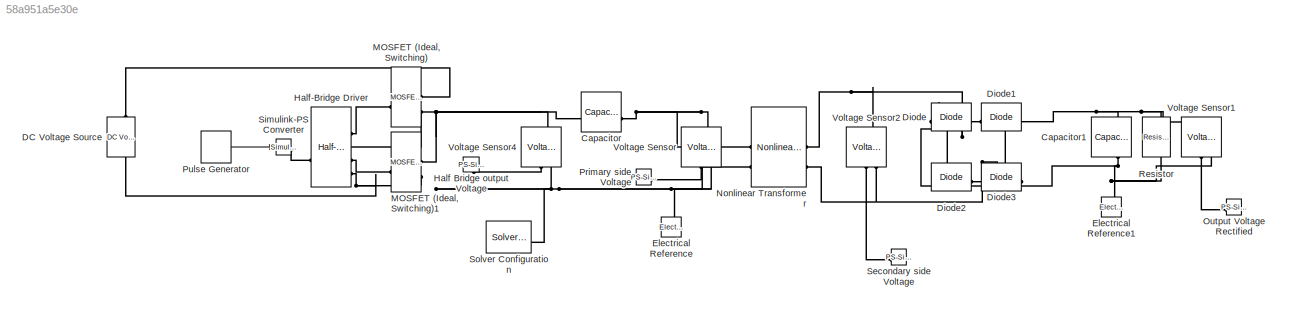
MODEL slx_58a951a5e30e
KIND model
CONFIG AbsTol = auto
CONFIG EnableMultiTasking = off
CONFIG FixedStep = auto
CONFIG MaxStep = auto
CONFIG MinStep = auto
CONFIG RelTol = 1e-3
CONFIG SampleTimeConstraint = Unconstrained
CONFIG SolverName = VariableStepAuto
CONFIG StartTime = 0.0
CONFIG StopTime = 0.01
BLOCK [Reference] Capacitor  REF=fl_lib/Electrical/Electrical Elements/Capacitor
  SourceBlock = fl_lib/Electrical/Electrical Elements/Capacitor
  SourceType = Capacitor
BLOCK [Reference] Capacitor1  REF=fl_lib/Electrical/Electrical Elements/Capacitor
  NameLocation = left
  SourceBlock = fl_lib/Electrical/Electrical Elements/Capacitor
  SourceType = Capacitor
BLOCK [Reference] DC Voltage Source  REF=fl_lib/Electrical/Electrical Sources/DC Voltage Source
  NameLocation = right
  SourceBlock = fl_lib/Electrical/Electrical Sources/DC Voltage Source
  SourceType = DC Voltage Source
BLOCK [Reference] Diode  REF=ee_lib/Semiconductors &
Converters/Diode
  SourceBlock = ee_lib/Semiconductors &\nConverters/Diode
  SourceType = Diode
BLOCK [Reference] Diode1  REF=ee_lib/Semiconductors &
Converters/Diode
  SourceBlock = ee_lib/Semiconductors &\nConverters/Diode
  SourceType = Diode
BLOCK [Reference] Diode2  REF=ee_lib/Semiconductors &
Converters/Diode
  SourceBlock = ee_lib/Semiconductors &\nConverters/Diode
  SourceType = Diode
BLOCK [Reference] Diode3  REF=ee_lib/Semiconductors &
Converters/Diode
  SourceBlock = ee_lib/Semiconductors &\nConverters/Diode
  SourceType = Diode
BLOCK [Reference] Electrical Reference  REF=fl_lib/Electrical/Electrical Elements/Electrical Reference
  NameLocation = right
  SourceBlock = fl_lib/Electrical/Electrical Elements/Electrical Reference
  SourceType = Electrical Reference
BLOCK [Reference] Electrical Reference1  REF=fl_lib/Electrical/Electrical Elements/Electrical Reference
  NameLocation = right
  SourceBlock = fl_lib/Electrical/Electrical Elements/Electrical Reference
  SourceType = Electrical Reference
BLOCK [Reference] Half Bridge output Voltage  REF=nesl_utility/PS-Simulink
Converter
  NameLocation = right
  SourceBlock = nesl_utility/PS-Simulink\nConverter
  SourceType = PS-Simulink\nConverter
BLOCK [Reference] Half-Bridge Driver  REF=ee_lib/Semiconductors &
Converters/Half-Bridge Driver
  SourceBlock = ee_lib/Semiconductors &\nConverters/Half-Bridge Driver
  SourceType = Half-Bridge Driver
BLOCK [Reference] MOSFET (Ideal, Switching)  REF=ee_lib/Semiconductors &
Converters/MOSFET
(Ideal,
Switching)
  SourceBlock = ee_lib/Semiconductors &\nConverters/MOSFET\n(Ideal,\nSwitching)
  SourceType = MOSFET\n(Ideal,\nSwitching)
BLOCK [Reference] MOSFET (Ideal, Switching)1  REF=ee_lib/Semiconductors &
Converters/MOSFET
(Ideal,
Switching)
  SourceBlock = ee_lib/Semiconductors &\nConverters/MOSFET\n(Ideal,\nSwitching)
  SourceType = MOSFET\n(Ideal,\nSwitching)
BLOCK [Reference] Nonlinear Transformer  REF=ee_lib/Passive/Transformers/Nonlinear
Transformer
  SourceBlock = ee_lib/Passive/Transformers/Nonlinear\nTransformer
  SourceType = Nonlinear\nTransformer
BLOCK [Reference] Output Voltage Rectified  REF=nesl_utility/PS-Simulink
Converter
  SourceBlock = nesl_utility/PS-Simulink\nConverter
  SourceType = PS-Simulink\nConverter
BLOCK [Reference] Primary side Voltage  REF=nesl_utility/PS-Simulink
Converter
  NameLocation = top
  SourceBlock = nesl_utility/PS-Simulink\nConverter
  SourceType = PS-Simulink\nConverter
BLOCK [DiscretePulseGenerator] Pulse Generator
  Period = 1e-5
  PulseType = Time based
  PulseWidth = 50
BLOCK [Reference] Resistor  REF=fl_lib/Electrical/Electrical Elements/Resistor
  NameLocation = left
  SourceBlock = fl_lib/Electrical/Electrical Elements/Resistor
  SourceType = Resistor
BLOCK [Reference] Secondary side Voltage  REF=nesl_utility/PS-Simulink
Converter
  SourceBlock = nesl_utility/PS-Simulink\nConverter
  SourceType = PS-Simulink\nConverter
BLOCK [Reference] Simulink-PS Converter  REF=nesl_utility/Simulink-PS
Converter
  SourceBlock = nesl_utility/Simulink-PS\nConverter
  SourceType = Simulink-PS\nConverter
BLOCK [Reference] Solver Configuration  REF=nesl_utility/Solver
Configuration
  SourceBlock = nesl_utility/Solver\nConfiguration
  SourceType = Solver\nConfiguration
BLOCK [Reference] Voltage Sensor  REF=fl_lib/Electrical/Electrical Sensors/Voltage Sensor
  NameLocation = right
  SourceBlock = fl_lib/Electrical/Electrical Sensors/Voltage Sensor
  SourceType = Voltage Sensor
BLOCK [Reference] Voltage Sensor1  REF=fl_lib/Electrical/Electrical Sensors/Voltage Sensor
  NameLocation = right
  SourceBlock = fl_lib/Electrical/Electrical Sensors/Voltage Sensor
  SourceType = Voltage Sensor
BLOCK [Reference] Voltage Sensor2  REF=fl_lib/Electrical/Electrical Sensors/Voltage Sensor
  NameLocation = right
  SourceBlock = fl_lib/Electrical/Electrical Sensors/Voltage Sensor
  SourceType = Voltage Sensor
BLOCK [Reference] Voltage Sensor4  REF=fl_lib/Electrical/Electrical Sensors/Voltage Sensor
  NameLocation = right
  SourceBlock = fl_lib/Electrical/Electrical Sensors/Voltage Sensor
  SourceType = Voltage Sensor
LINE Pulse Generator:1 -> Simulink-PS Converter:1
PNET net1: Capacitor1:LConn1 -- Diode1:RConn1 -- Diode3:RConn1 -- Resistor:LConn1 -- Voltage Sensor1:LConn1
PNET net2: Capacitor1:RConn1 -- Diode2:LConn1 -- Diode:LConn1 -- Electrical Reference1:LConn1 -- Resistor:RConn1 -- Voltage Sensor1:RConn2
PNET net3: Capacitor:LConn1 -- Half-Bridge Driver:RConn2 -- MOSFET (Ideal, Switching)1:RConn1 -- MOSFET (Ideal, Switching):RConn2 -- Voltage Sensor4:LConn1
PNET net4: Capacitor:RConn1 -- Nonlinear Transformer:LConn1 -- Voltage Sensor:LConn1
PLINE DC Voltage Source:LConn1 -- MOSFET (Ideal, Switching):RConn1
PNET net5: DC Voltage Source:RConn1 -- Electrical Reference:LConn1 -- Half-Bridge Driver:RConn4 -- MOSFET (Ideal, Switching)1:RConn2 -- Nonlinear Transformer:LConn2 -- Solver Configuration:RConn1 -- Voltage Sensor4:RConn2 -- Voltage Sensor:RConn2
PNET net6: Diode1:LConn1 -- Diode:RConn1 -- Nonlinear Transformer:RConn1 -- Voltage Sensor2:LConn1
PNET net7: Diode2:RConn1 -- Diode3:LConn1 -- Nonlinear Transformer:RConn2 -- Voltage Sensor2:RConn2
PLINE Half Bridge output Voltage:LConn1 -- Voltage Sensor4:RConn1
PLINE Half-Bridge Driver:LConn1 -- Simulink-PS Converter:RConn1
PLINE Half-Bridge Driver:RConn1 -- MOSFET (Ideal, Switching):LConn1
PLINE Half-Bridge Driver:RConn3 -- MOSFET (Ideal, Switching)1:LConn1
PLINE Output Voltage Rectified:LConn1 -- Voltage Sensor1:RConn1
PLINE Primary side Voltage:LConn1 -- Voltage Sensor:RConn1
PLINE Secondary side Voltage:LConn1 -- Voltage Sensor2:RConn1
note: PNET lines group multi-terminal physical nets as a canonical sorted terminal list (undirected conserving connections); 2-terminal nets keep the pairwise PLINE form
